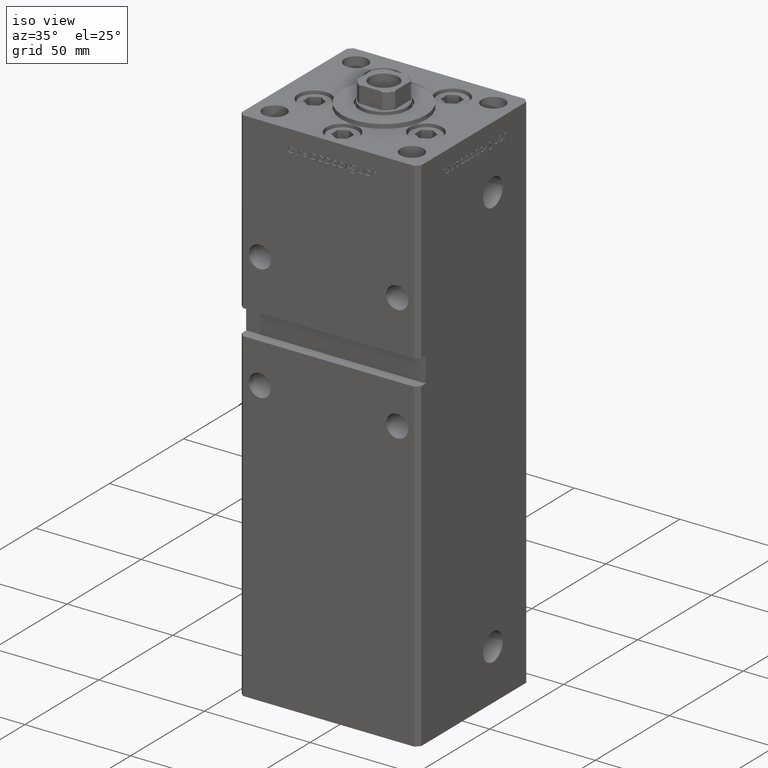
[diagram: clean part render]
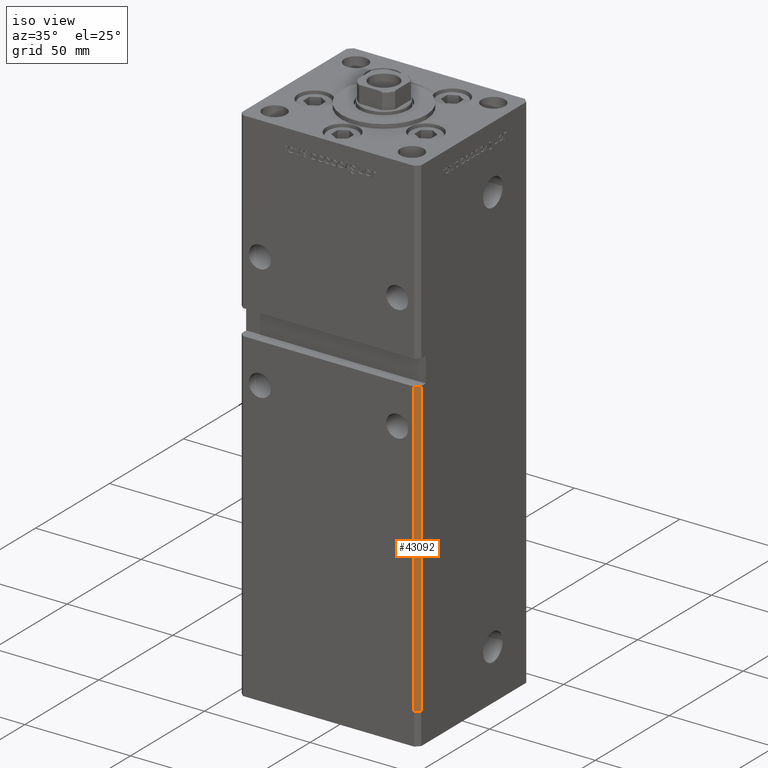
[diagram: same view with one face highlighted and labeled with its STEP entity id]
A machine part, iso view. The second image highlights one B-rep face of the part: STEP entity #43092.
In plain terms, the highlighted planar face has unit normal (0.7071, -0.7071, 0).
Its self-contained STEP definition (entity closure, byte-faithful):
#3854 = CARTESIAN_POINT ( 'NONE',  ( 42.49999999999998579, -35.50000000000000711, 218.5000000000000000 ) ) ;
#4278 = ORIENTED_EDGE ( 'NONE', *, *, #51229, .T. ) ;
#4472 = CARTESIAN_POINT ( 'NONE',  ( 42.49999999999998579, -35.50000000000000711, 139.0000000000000284 ) ) ;
#4652 = LINE ( 'NONE', #37176, #16387 ) ;
#5831 = DIRECTION ( 'NONE',  ( 0.7071067811865474617, 0.7071067811865474617, 0.000000000000000000 ) ) ;
#6825 = DIRECTION ( 'NONE',  ( 0.7071067811865474617, 0.7071067811865474617, 0.000000000000000000 ) ) ;
#7594 = CARTESIAN_POINT ( 'NONE',  ( 42.49999999999998579, -35.50000000000000711, 218.5000000000000000 ) ) ;
#8623 = CARTESIAN_POINT ( 'NONE',  ( 42.49999999999998579, -35.50000000000000711, 139.0000000000000284 ) ) ;
#13416 = ORIENTED_EDGE ( 'NONE', *, *, #49664, .F. ) ;
#15715 = EDGE_LOOP ( 'NONE', ( #33605, #4278, #13416, #41021 ) ) ;
#15876 = CARTESIAN_POINT ( 'NONE',  ( 42.49999999999998579, -35.50000000000000711, 0.000000000000000000 ) ) ;
#16387 = VECTOR ( 'NONE', #49794, 1000.000000000000000 ) ;
#16434 = EDGE_CURVE ( 'NONE', #18336, #28520, #44407, .T. ) ;
#18336 = VERTEX_POINT ( 'NONE', #4472 ) ;
#22487 = LINE ( 'NONE', #8623, #40780 ) ;
#26152 = CARTESIAN_POINT ( 'NONE',  ( 42.49999999999998579, -35.50000000000000711, 0.000000000000000000 ) ) ;
#28054 = PLANE ( 'NONE',  #45254 ) ;
#28520 = VERTEX_POINT ( 'NONE', #26152 ) ;
#28790 = CARTESIAN_POINT ( 'NONE',  ( 40.49999999999998579, -37.50000000000000711, 0.000000000000000000 ) ) ;
#31999 = LINE ( 'NONE', #15876, #44610 ) ;
#32522 = VERTEX_POINT ( 'NONE', #28790 ) ;
#32585 = EDGE_CURVE ( 'NONE', #51128, #18336, #22487, .T. ) ;
#32614 = FACE_OUTER_BOUND ( 'NONE', #15715, .T. ) ;
#33605 = ORIENTED_EDGE ( 'NONE', *, *, #32585, .F. ) ;
#36103 = DIRECTION ( 'NONE',  ( 0.7071067811865475727, -0.7071067811865475727, 0.000000000000000000 ) ) ;
#36645 = CARTESIAN_POINT ( 'NONE',  ( 40.49999999999998579, -37.50000000000000711, 139.0000000000000284 ) ) ;
#37176 = CARTESIAN_POINT ( 'NONE',  ( 40.49999999999998579, -37.50000000000000711, 218.5000000000000000 ) ) ;
#40780 = VECTOR ( 'NONE', #5831, 1000.000000000000114 ) ;
#41021 = ORIENTED_EDGE ( 'NONE', *, *, #16434, .F. ) ;
#43092 = ADVANCED_FACE ( 'NONE', ( #32614 ), #28054, .T. ) ;
#44407 = LINE ( 'NONE', #7594, #48850 ) ;
#44610 = VECTOR ( 'NONE', #52935, 1000.000000000000114 ) ;
#44935 = DIRECTION ( 'NONE',  ( -0.000000000000000000, -0.000000000000000000, -1.000000000000000000 ) ) ;
#45254 = AXIS2_PLACEMENT_3D ( 'NONE', #3854, #36103, #6825 ) ;
#48850 = VECTOR ( 'NONE', #44935, 1000.000000000000000 ) ;
#49664 = EDGE_CURVE ( 'NONE', #28520, #32522, #31999, .T. ) ;
#49794 = DIRECTION ( 'NONE',  ( -0.000000000000000000, -0.000000000000000000, -1.000000000000000000 ) ) ;
#51128 = VERTEX_POINT ( 'NONE', #36645 ) ;
#51229 = EDGE_CURVE ( 'NONE', #51128, #32522, #4652, .T. ) ;
#52935 = DIRECTION ( 'NONE',  ( -0.7071067811865474617, -0.7071067811865474617, 0.000000000000000000 ) ) ;